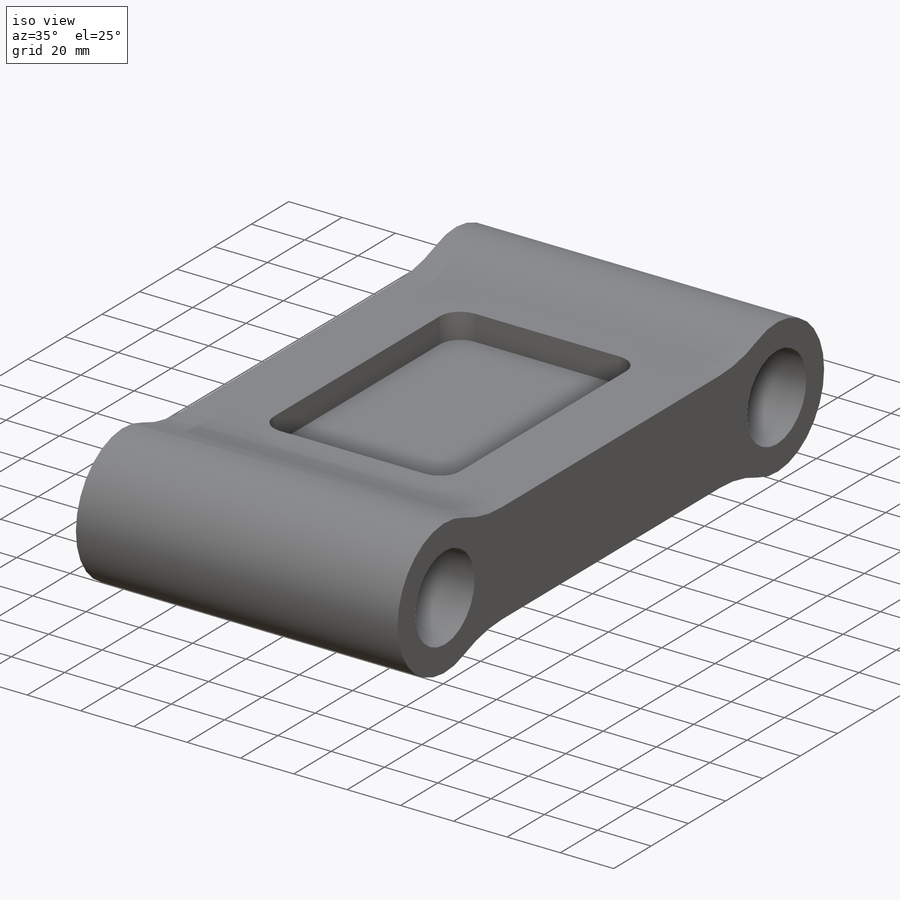
[diagram: iso view]
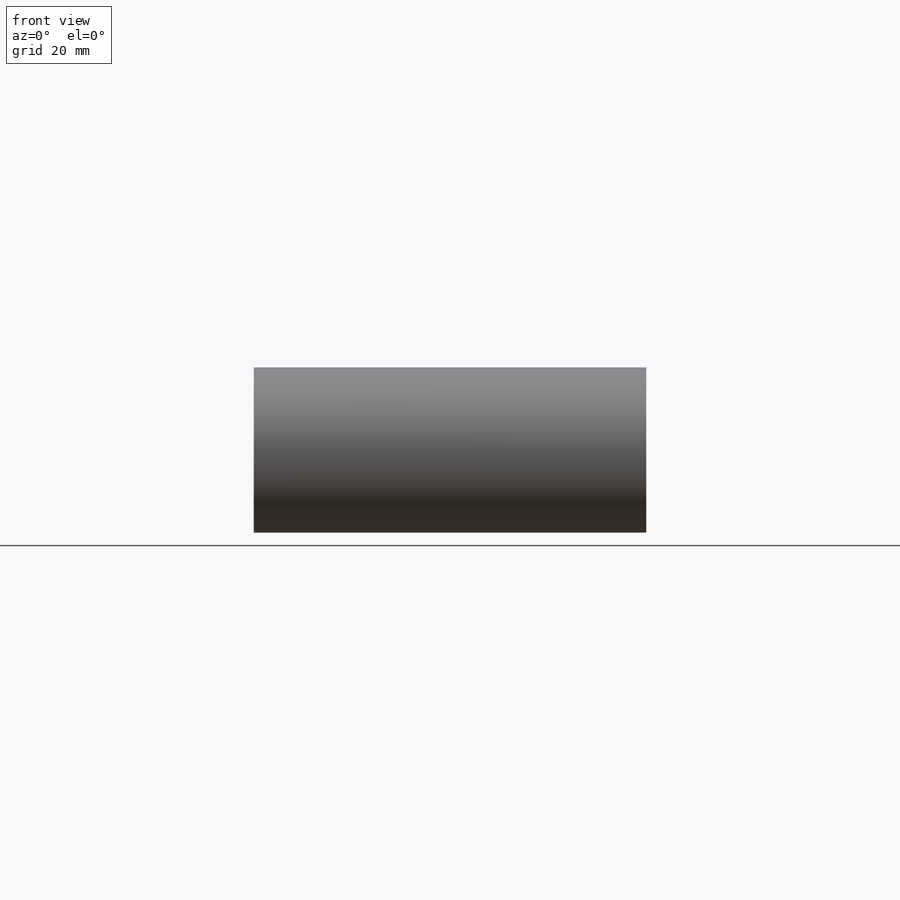
[diagram: front view]
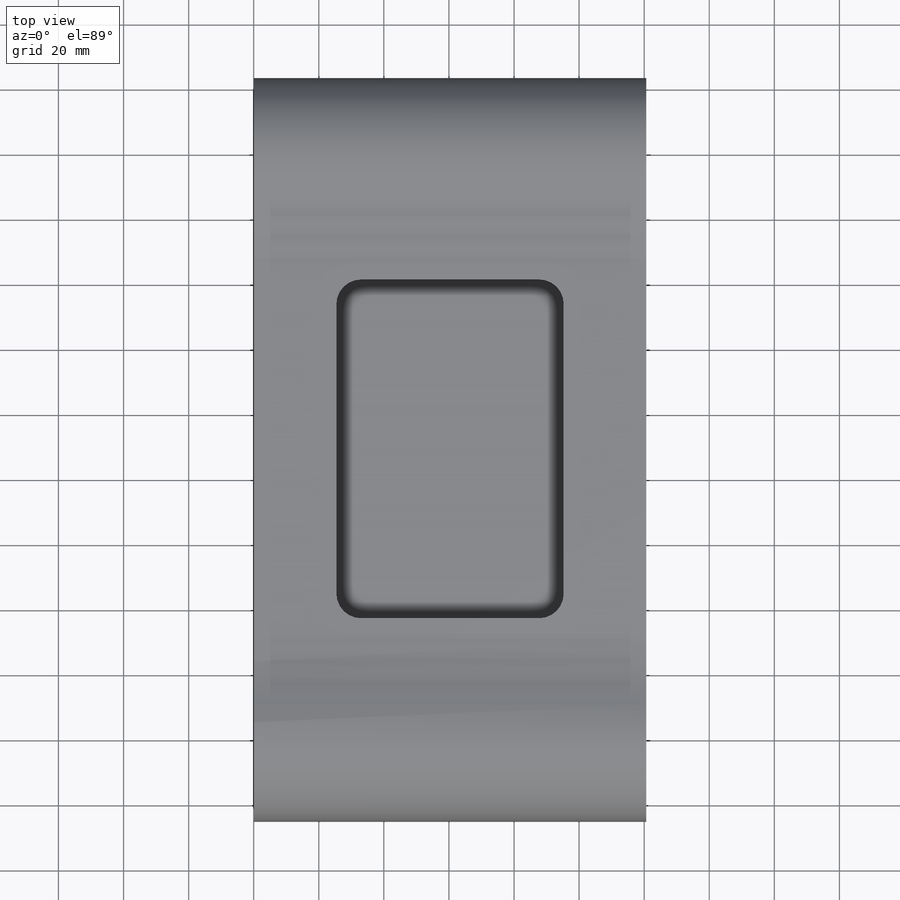
[diagram: top view]
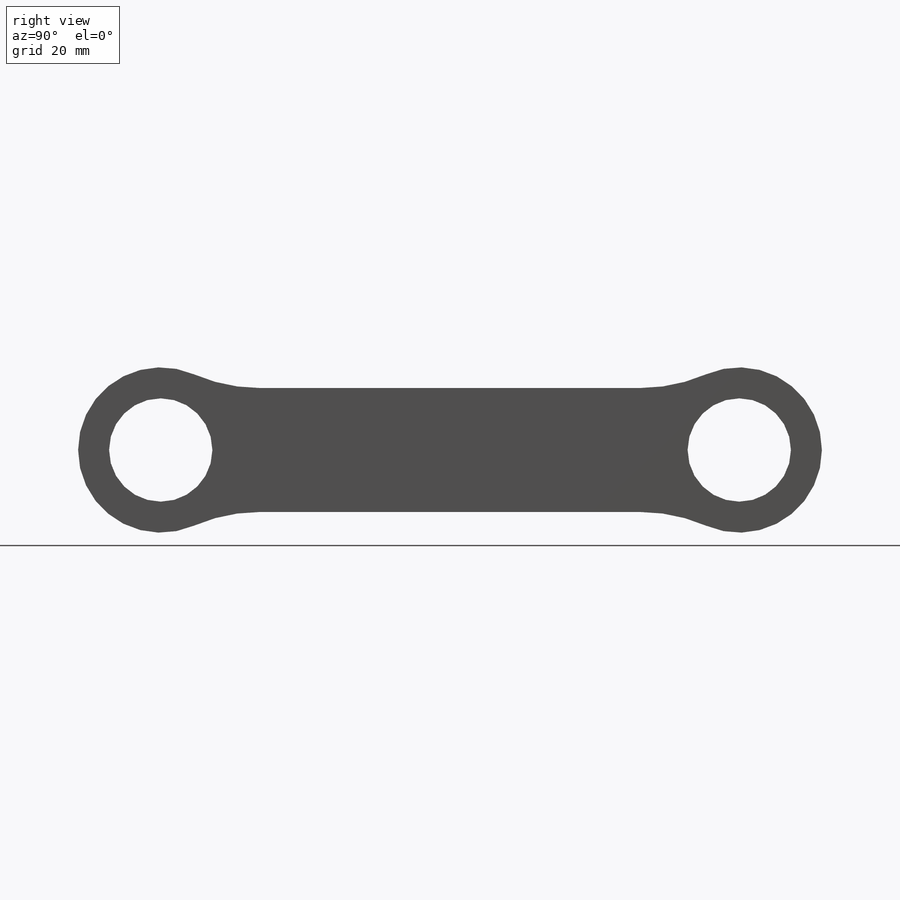
[diagram: right view]
SOLIDWORKS PART (.sldprt)
format: sldprt  version: not decoded by parser v0  size: 295,424 bytes
history: native  units: mm
features: sketch x3, fillet x2, cut_extrude x2, material x1, extrude x1, plane x1, mirror x1 (+13 scaffold rows collapsed)
feature tree (24):
  scaffold x13  (default folders/planes/origin — collapsed)
  material  "6061-T6 (SS)"
  sketch  "Sketch1"  dims[c1.D1=31.75mm c1.D3=50.8mm c2.D1=~3.602121mm c2.D2=177.8mm c2.D4=19.05mm c2.D5=19.05mm]
  extrude  "Boss-Extrude1"  Depth=127mm
  fillet  "Fillet1"  Radius=50.8mm
  sketch  "Sketch2"  dims[D1=6.35mm D2=25.4mm]
  cut_extrude  "Cut-Extrude1"  [1 undecoded]
  sketch  "Sketch3"  dims[D1=25.4mm D2=25.4mm D3=6.35mm D4=6.35mm]
  cut_extrude  "Cut-Extrude2"  Depth=9.525mm
  fillet  "Fillet2"  Radius=7.62mm
  plane  "Plane1"
  mirror  "Mirror1"
decode coverage: 7 of 9 modeling features carry decoded parameters
note: ~ marks probable driven/reference dimensions
note: 1 parameter value undecoded
note: suppression state not decoded; provenance and decode notes live in map.json
